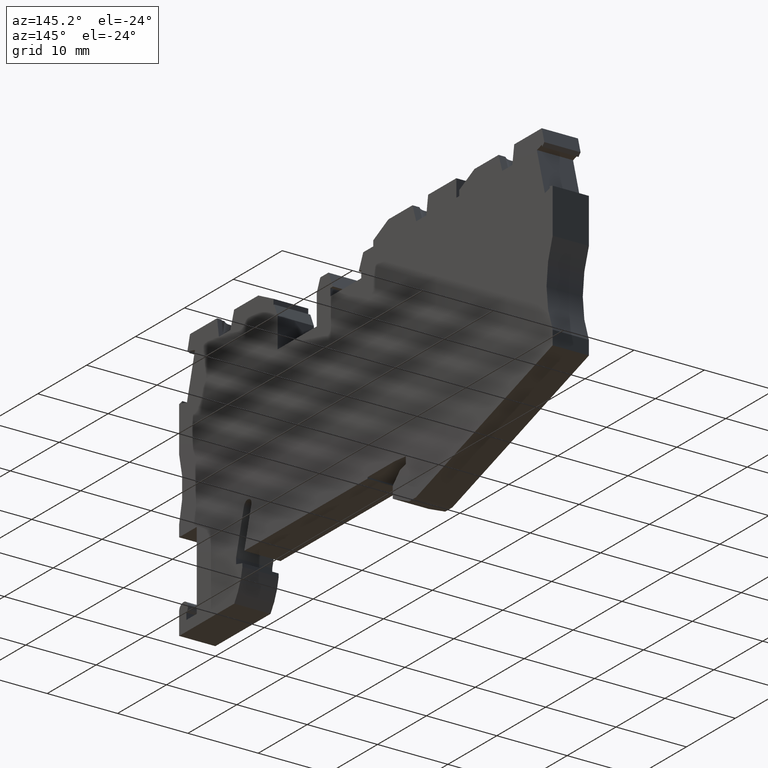
[diagram: clean part render]
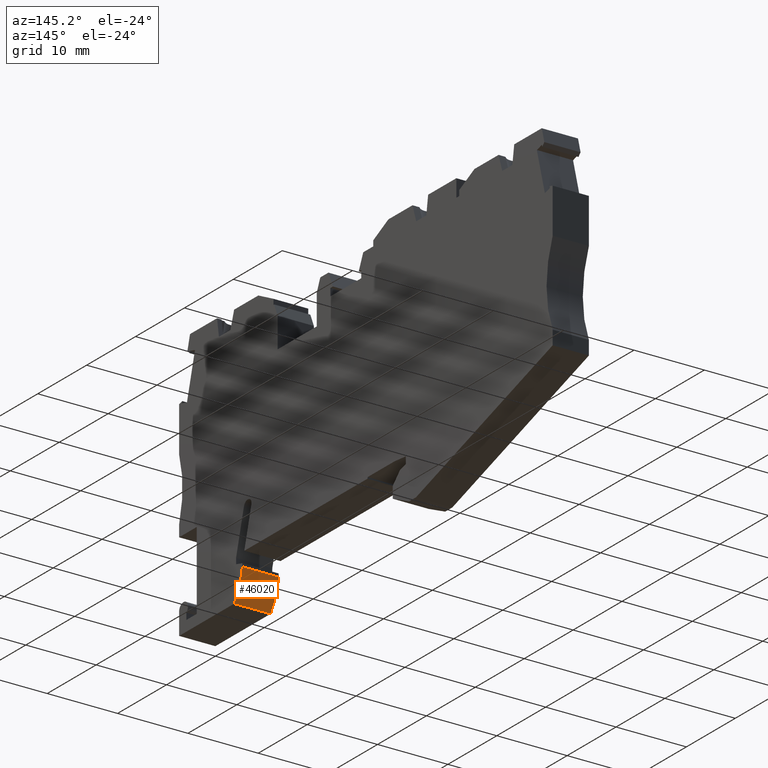
[diagram: same view with one face highlighted and labeled with its STEP entity id]
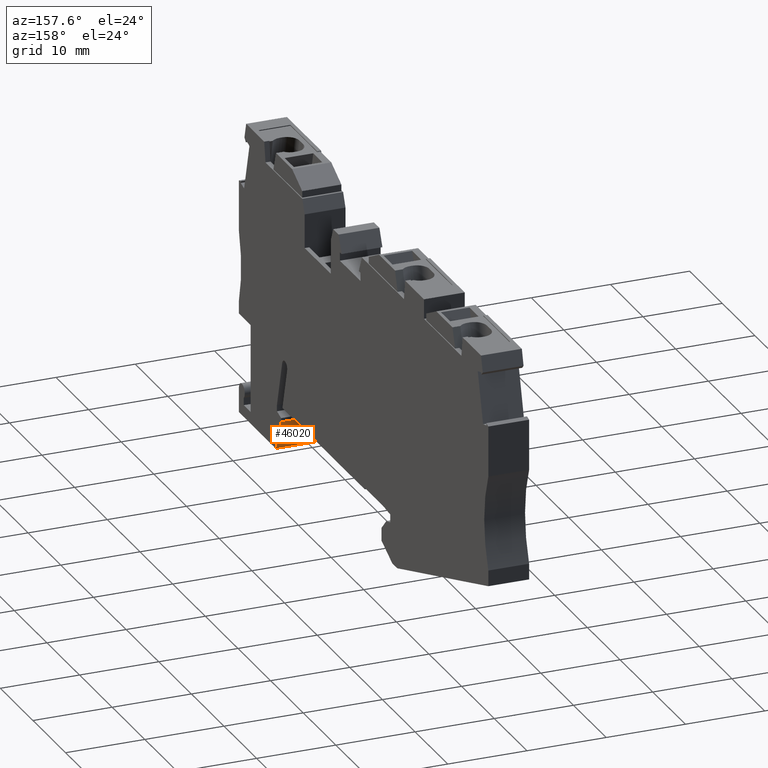
[diagram: same view with one face highlighted and labeled with its STEP entity id]
A machine part, auxiliary view. The second image highlights one B-rep face of the part: STEP entity #46020.
A second angle (auxiliary view) of the same face is appended — the face is thin or edge-on in the first view.
In plain terms, the highlighted cylindrical surface (partial cylindrical patch) has radius 9.5 mm, axis along (1, -0, 0).
Its self-contained STEP definition (entity closure, byte-faithful):
#3860=CARTESIAN_POINT('',(20.1018012370323,0.384821958285007,
8.2857408012641E-11));
#3870=VERTEX_POINT('',#3860);
#3900=CARTESIAN_POINT('',(10.6053593749794,0.644806497501176,
-7.09981177655912E-11));
#3910=DIRECTION('',(-1.12577348889874E-16,8.16781307540979E-17,1.));
#3920=DIRECTION('',(0.992546151641322,0.121869343405148,
9.82259016566094E-17));
#3930=AXIS2_PLACEMENT_3D('',#3900,#3910,#3920);
#3940=CIRCLE('',#3930,9.49999999999899);
#3950=CARTESIAN_POINT('',(18.9548874062867,-3.88679163719655,
8.39496621322146E-11));
#3960=VERTEX_POINT('',#3950);
#3970=EDGE_CURVE('',#3960,#3870,#3940,.T.);
#12650=CARTESIAN_POINT('',(18.9548874062867,-3.88679163719655,
-5.15000000007866));
#12660=VERTEX_POINT('',#12650);
#12690=CARTESIAN_POINT('',(10.6053593749794,0.644806497501175,
-5.150000000071));
#12700=DIRECTION('',(-1.12577348889874E-16,8.16781307540979E-17,1.));
#12710=DIRECTION('',(0.992546151641322,0.121869343405148,
9.82259016566094E-17));
#12720=AXIS2_PLACEMENT_3D('',#12690,#12700,#12710);
#12730=CIRCLE('',#12720,9.49999999999899);
#12740=CARTESIAN_POINT('',(20.1018012370323,0.384821958285007,
-5.15000000007611));
#12750=VERTEX_POINT('',#12740);
#12760=EDGE_CURVE('',#12660,#12750,#12730,.T.);
#45810=CARTESIAN_POINT('',(10.6053593749794,0.644806497501175,
-5.150000000071));
#45820=DIRECTION('',(-1.12577348889874E-16,8.16781307540979E-17,1.));
#45830=DIRECTION('',(0.992546151641322,0.121869343405148,
9.82259016566094E-17));
#45840=AXIS2_PLACEMENT_3D('',#45810,#45820,#45830);
#45850=CYLINDRICAL_SURFACE('',#45840,9.49999999999899);
#45860=ORIENTED_EDGE('',*,*,#12760,.T.);
#45870=CARTESIAN_POINT('',(18.9548874062867,-3.88679163719654,
-5.150000000071));
#45880=DIRECTION('',(-1.12577348889874E-16,8.16781307540979E-17,1.));
#45890=VECTOR('',#45880,1.);
#45900=LINE('',#45870,#45890);
#45910=EDGE_CURVE('',#12660,#3960,#45900,.T.);
#45920=ORIENTED_EDGE('',*,*,#45910,.F.);
#45930=ORIENTED_EDGE('',*,*,#3970,.F.);
#45940=CARTESIAN_POINT('',(20.1018012370323,0.384821958285006,
-5.150000000071));
#45950=DIRECTION('',(-1.12577348889874E-16,8.16781307540979E-17,1.));
#45960=VECTOR('',#45950,1.);
#45970=LINE('',#45940,#45960);
#45980=EDGE_CURVE('',#12750,#3870,#45970,.T.);
#45990=ORIENTED_EDGE('',*,*,#45980,.T.);
#46000=EDGE_LOOP('',(#45990,#45930,#45920,#45860));
#46010=FACE_OUTER_BOUND('',#46000,.T.);
#46020=ADVANCED_FACE('',(#46010),#45850,.T.);